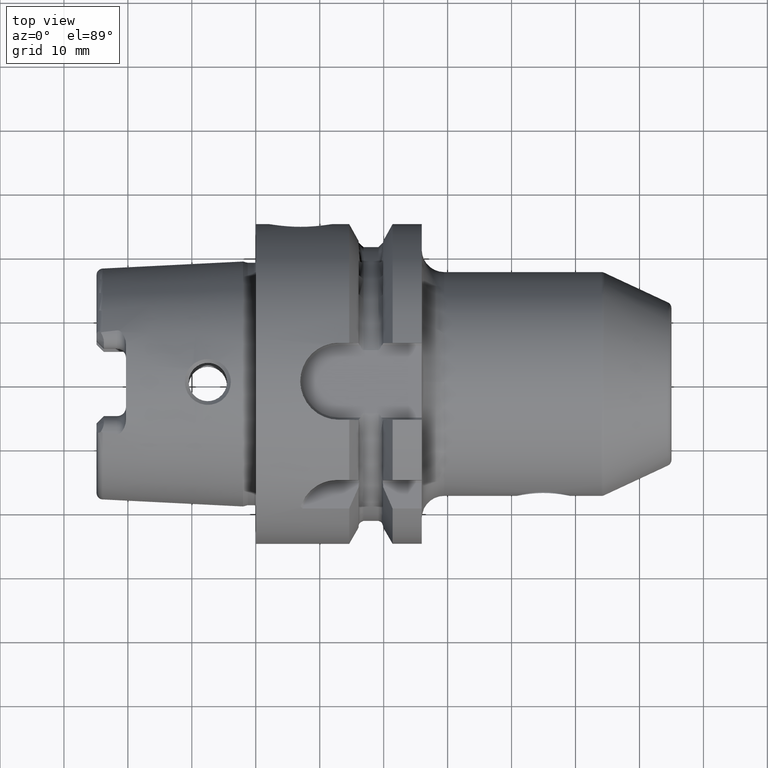
[diagram: clean part render]
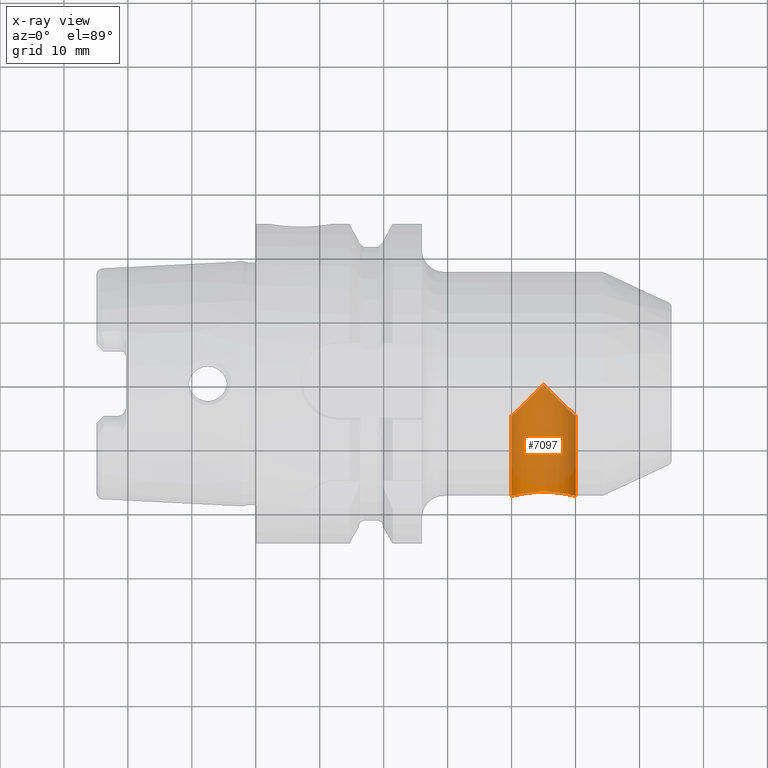
[diagram: x-ray — body ghosted, one internal face saturated and labeled with its STEP entity id]
A machine part, top view, then the same camera in x-ray: the body is ghosted and one INTERNAL B-rep face — a face not visible from any outside direction — is saturated and labeled: STEP entity #7097.
In plain terms, the highlighted cylindrical surface (edge-blend (fillet) strip) has radius 5 mm, axis along (0, -1, 0).
Its self-contained STEP definition (entity closure, byte-faithful):
#6956=CARTESIAN_POINT('',(5.E1,-1.750001887021E1,0.E0));
#6957=CARTESIAN_POINT('',(5.E1,-1.750001887021E1,-2.450023713915E-1));
#6958=CARTESIAN_POINT('',(4.996399799605E1,-1.748965093287E1,
-7.367320997240E-1));
#6959=CARTESIAN_POINT('',(4.979995843012E1,-1.744350200562E1,
-1.464898539903E0));
#6960=CARTESIAN_POINT('',(4.952916941144E1,-1.737040965392E1,
-2.162194521614E0));
#6961=CARTESIAN_POINT('',(4.915279096326E1,-1.727540582748E1,
-2.818690510895E0));
#6962=CARTESIAN_POINT('',(4.868135414101E1,-1.716732329456E1,
-3.411896046879E0));
#6963=CARTESIAN_POINT('',(4.812029332521E1,-1.705498079842E1,
-3.931420275317E0));
#6964=CARTESIAN_POINT('',(4.749500560324E1,-1.695093572802E1,
-4.354899534217E0));
#6965=CARTESIAN_POINT('',(4.681248116428E1,-1.686340520673E1,
-4.679895681377E0));
#6966=CARTESIAN_POINT('',(4.610276412008E1,-1.680153255717E1,
-4.895636199605E0));
#6967=CARTESIAN_POINT('',(4.536713020939E1,-1.676913226088E1,
-5.004658748496E0));
#6968=CARTESIAN_POINT('',(4.463279952169E1,-1.676913403034E1,
-5.004652777839E0));
#6969=CARTESIAN_POINT('',(4.389717740705E1,-1.680153622428E1,
-4.895623918083E0));
#6970=CARTESIAN_POINT('',(4.318744184287E1,-1.686341368117E1,
-4.679864943483E0));
#6971=CARTESIAN_POINT('',(4.250494993318E1,-1.695094220681E1,
-4.354875400810E0));
#6972=CARTESIAN_POINT('',(4.187962921529E1,-1.705499512658E1,
-3.931357169539E0));
#6973=CARTESIAN_POINT('',(4.131862411669E1,-1.716732806132E1,
-3.411873947510E0));
#6974=CARTESIAN_POINT('',(4.084714123868E1,-1.727542203114E1,
-2.818591559445E0));
#6975=CARTESIAN_POINT('',(4.047081624825E1,-1.737041366544E1,
-2.162159741405E0));
#6976=CARTESIAN_POINT('',(4.020002203018E1,-1.744350734617E1,
-1.464833730633E0));
#6977=CARTESIAN_POINT('',(4.003600517024E1,-1.748965005624E1,
-7.367334564522E-1));
#6978=CARTESIAN_POINT('',(4.E1,-1.750001895020E1,-2.450044799341E-1));
#6979=CARTESIAN_POINT('',(4.E1,-1.750001895020E1,0.E0));
#6981=CARTESIAN_POINT('',(4.E1,-5.E0,0.E0));
#6982=CARTESIAN_POINT('',(4.E1,-5.E0,-1.985108039361E-1));
#6983=CARTESIAN_POINT('',(4.002368095154E1,-4.976319048462E0,
-5.969888167622E-1));
#6984=CARTESIAN_POINT('',(4.013108751316E1,-4.868912486843E0,
-1.189428788380E0));
#6985=CARTESIAN_POINT('',(4.031048620871E1,-4.689513791289E0,
-1.770882389295E0));
#6986=CARTESIAN_POINT('',(4.057174069843E1,-4.428259301572E0,
-2.352682368471E0));
#6987=CARTESIAN_POINT('',(4.092845757464E1,-4.071542425356E0,
-2.929461002972E0));
#6988=CARTESIAN_POINT('',(4.137523895990E1,-3.624761040102E0,
-3.468111766486E0));
#6989=CARTESIAN_POINT('',(4.191000896037E1,-3.089991039627E0,
-3.954280813785E0));
#6990=CARTESIAN_POINT('',(4.254869530639E1,-2.451304693611E0,
-4.381467364068E0));
#6991=CARTESIAN_POINT('',(4.329300519858E1,-1.706994801416E0,
-4.726253916085E0));
#6992=CARTESIAN_POINT('',(4.415804505704E1,-8.419549429637E-1,
-4.954631048385E0));
#6993=CARTESIAN_POINT('',(4.471859876556E1,-2.814012344359E-1,-5.E0));
#6994=CARTESIAN_POINT('',(4.5E1,0.E0,-5.E0));
#6996=CARTESIAN_POINT('',(4.5E1,0.E0,-5.E0));
#6997=CARTESIAN_POINT('',(4.528129515895E1,-2.812951589483E-1,-5.E0));
#6998=CARTESIAN_POINT('',(4.584169914675E1,-8.416991467458E-1,
-4.954680160921E0));
#6999=CARTESIAN_POINT('',(4.670697900899E1,-1.706979008986E0,
-4.726265725557E0));
#7000=CARTESIAN_POINT('',(4.745114533274E1,-2.451145332741E0,
-4.381542435024E0));
#7001=CARTESIAN_POINT('',(4.808970619666E1,-3.089706196662E0,
-3.954491395902E0));
#7002=CARTESIAN_POINT('',(4.862439652106E1,-3.624396521064E0,
-3.468489923005E0));
#7003=CARTESIAN_POINT('',(4.907129626855E1,-4.071296268546E0,
-2.929813339649E0));
#7004=CARTESIAN_POINT('',(4.942808900009E1,-4.428089000091E0,
-2.353003281549E0));
#7005=CARTESIAN_POINT('',(4.968938674526E1,-4.689386745260E0,
-1.771224421694E0));
#7006=CARTESIAN_POINT('',(4.986885950613E1,-4.868859506129E0,
-1.189670859486E0));
#7007=CARTESIAN_POINT('',(4.997631105535E1,-4.976311055346E0,
-5.970973193835E-1));
#7008=CARTESIAN_POINT('',(5.E1,-5.E0,-1.985456731734E-1));
#7009=CARTESIAN_POINT('',(5.E1,-5.E0,0.E0));
#7036=DIRECTION('',(0.E0,1.E0,0.E0));
#7037=VECTOR('',#7036,1.250001887021E1);
#7038=CARTESIAN_POINT('',(5.E1,-1.750001887021E1,0.E0));
#7039=LINE('',#7038,#7037);
#7070=DIRECTION('',(0.E0,1.E0,0.E0));
#7071=VECTOR('',#7070,1.250001895020E1);
#7072=CARTESIAN_POINT('',(4.E1,-1.750001895020E1,0.E0));
#7073=LINE('',#7072,#7071);
#7074=VERTEX_POINT('',#6979);
#7075=VERTEX_POINT('',#6956);
#7076=VERTEX_POINT('',#6994);
#7077=VERTEX_POINT('',#6981);
#7078=VERTEX_POINT('',#7009);
#7080=CARTESIAN_POINT('',(4.5E1,3.556340512410E0,0.E0));
#7081=DIRECTION('',(0.E0,-1.E0,0.E0));
#7082=DIRECTION('',(-1.E0,0.E0,0.E0));
#7083=AXIS2_PLACEMENT_3D('',#7080,#7081,#7082);
#7084=CYLINDRICAL_SURFACE('',#7083,5.E0);
#7086=ORIENTED_EDGE('',*,*,#7085,.T.);
#7088=ORIENTED_EDGE('',*,*,#7087,.T.);
#7090=ORIENTED_EDGE('',*,*,#7089,.T.);
#7092=ORIENTED_EDGE('',*,*,#7091,.T.);
#7094=ORIENTED_EDGE('',*,*,#7093,.F.);
#7095=EDGE_LOOP('',(#7086,#7088,#7090,#7092,#7094));
#7096=FACE_OUTER_BOUND('',#7095,.F.);
#7097=ADVANCED_FACE('',(#7096),#7084,.F.);
#6980=B_SPLINE_CURVE_WITH_KNOTS('',3,(#6956,#6957,#6958,#6959,#6960,#6961,#6962,
#6963,#6964,#6965,#6966,#6967,#6968,#6969,#6970,#6971,#6972,#6973,#6974,#6975,
#6976,#6977,#6978,#6979),.UNSPECIFIED.,.F.,.F.,(4,1,1,1,1,1,1,1,1,1,1,1,1,1,1,1,
1,1,1,1,1,4),(0.E0,4.761904761905E-2,9.523809523810E-2,1.428571428571E-1,
1.904761904762E-1,2.380952380952E-1,2.857142857143E-1,3.333333333333E-1,
3.809523809524E-1,4.285714285714E-1,4.761904761905E-1,5.238095238095E-1,
5.714285714286E-1,6.190476190476E-1,6.666666666667E-1,7.142857142857E-1,
7.619047619048E-1,8.095238095238E-1,8.571428571429E-1,9.047619047619E-1,
9.523809523810E-1,1.E0),.UNSPECIFIED.);
#6995=B_SPLINE_CURVE_WITH_KNOTS('',3,(#6981,#6982,#6983,#6984,#6985,#6986,#6987,
#6988,#6989,#6990,#6991,#6992,#6993,#6994),.UNSPECIFIED.,.F.,.F.,(4,1,1,1,1,1,1,
1,1,1,1,4),(0.E0,9.090909090909E-2,1.818181818182E-1,2.727272727273E-1,
3.636363636364E-1,4.545454545455E-1,5.454545454545E-1,6.363636363636E-1,
7.272727272727E-1,8.181818181818E-1,9.090909090909E-1,1.E0),.UNSPECIFIED.);
#7010=B_SPLINE_CURVE_WITH_KNOTS('',3,(#6996,#6997,#6998,#6999,#7000,#7001,#7002,
#7003,#7004,#7005,#7006,#7007,#7008,#7009),.UNSPECIFIED.,.F.,.F.,(4,1,1,1,1,1,1,
1,1,1,1,4),(0.E0,9.090909090909E-2,1.818181818182E-1,2.727272727273E-1,
3.636363636364E-1,4.545454545455E-1,5.454545454545E-1,6.363636363636E-1,
7.272727272727E-1,8.181818181818E-1,9.090909090909E-1,1.E0),.UNSPECIFIED.);
#7085=EDGE_CURVE('',#7075,#7074,#6980,.T.);
#7087=EDGE_CURVE('',#7074,#7077,#7073,.T.);
#7089=EDGE_CURVE('',#7077,#7076,#6995,.T.);
#7091=EDGE_CURVE('',#7076,#7078,#7010,.T.);
#7093=EDGE_CURVE('',#7075,#7078,#7039,.T.);